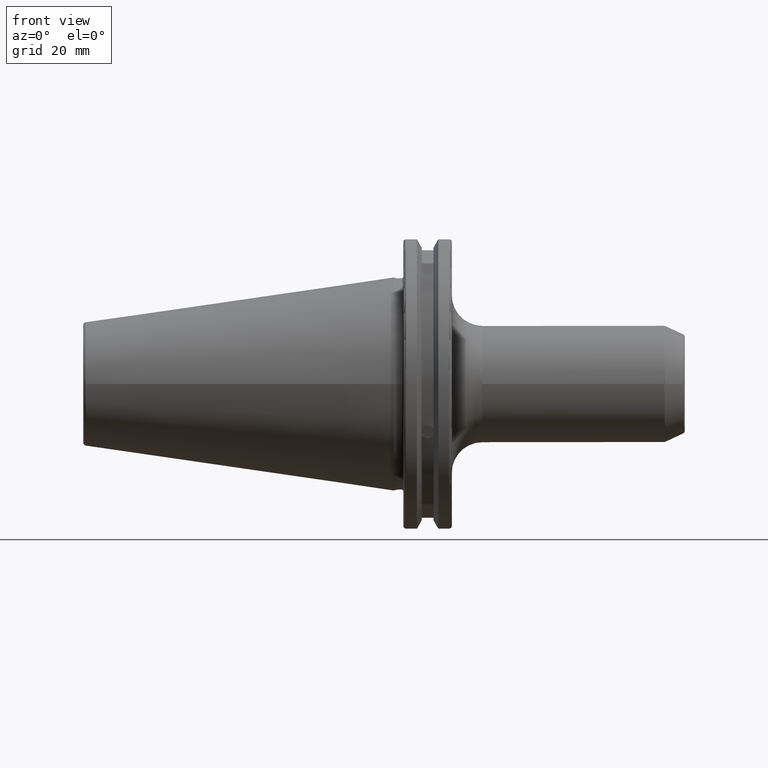
[diagram: clean part render]
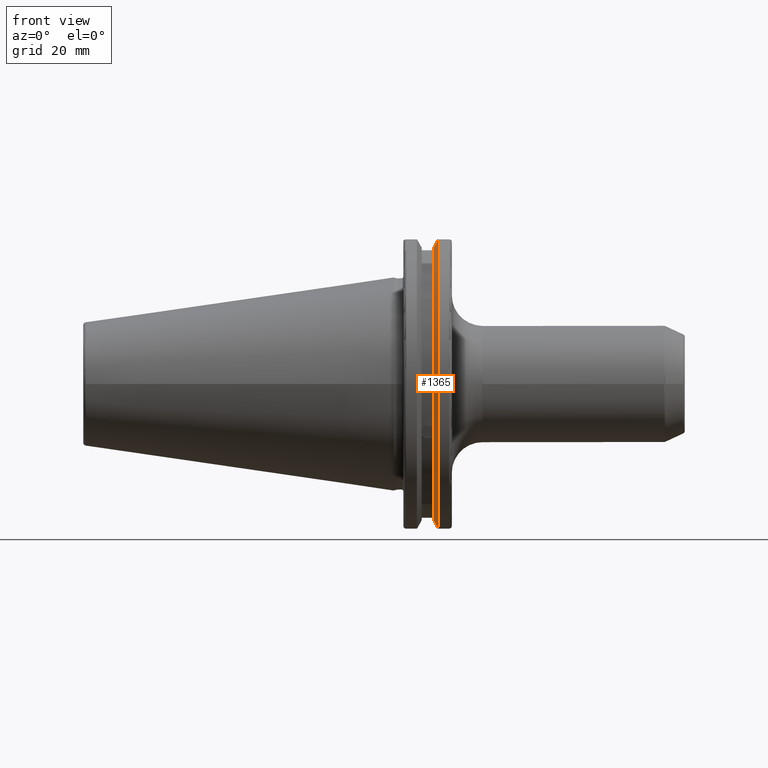
[diagram: same view with one face highlighted and labeled with its STEP entity id]
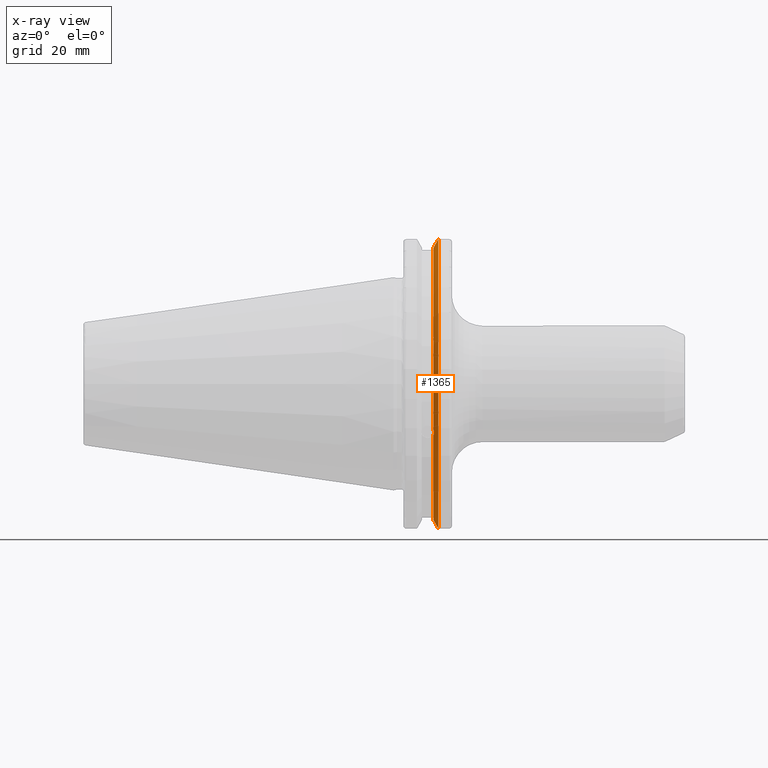
[diagram: x-ray of the same camera — body ghosted, the highlighted face saturated]
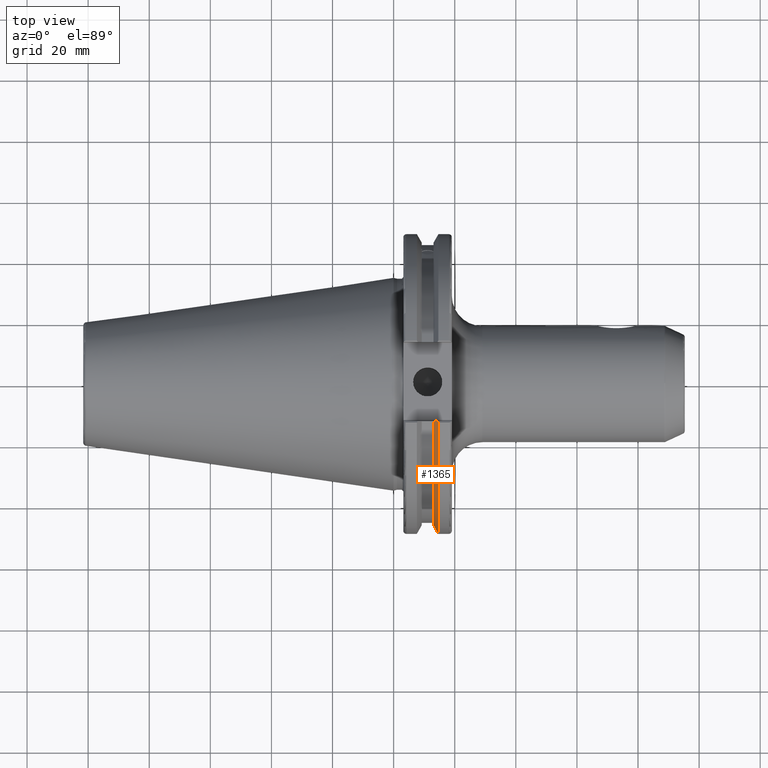
[diagram: same view with one face highlighted and labeled with its STEP entity id]
A machine part, front view. The second image highlights one B-rep face of the part: STEP entity #1365.
The next image is the same camera in x-ray: the body ghosted, the highlighted face saturated — about 0% of this face is hidden behind the body in this view.
A second angle (top view) of the same face is appended — the face is thin or edge-on in the first view.
In plain terms, the highlighted conical surface has half-angle 60 deg.
Its self-contained STEP definition (entity closure, byte-faithful):
#15=(
BOUNDED_CURVE()
B_SPLINE_CURVE(2,(#2269,#2270,#2271),.UNSPECIFIED.,.F.,.F.)
B_SPLINE_CURVE_WITH_KNOTS((3,3),(0.,0.275823910673374),.UNSPECIFIED.)
CURVE()
GEOMETRIC_REPRESENTATION_ITEM()
RATIONAL_B_SPLINE_CURVE((1.,1.00038235574978,1.00012873636953))
REPRESENTATION_ITEM('')
);
#16=(
BOUNDED_CURVE()
B_SPLINE_CURVE(2,(#2273,#2274,#2275),.UNSPECIFIED.,.F.,.F.)
B_SPLINE_CURVE_WITH_KNOTS((3,3),(0.,0.0648240472896156),.UNSPECIFIED.)
CURVE()
GEOMETRIC_REPRESENTATION_ITEM()
RATIONAL_B_SPLINE_CURVE((1.,1.00011477674884,1.00019140646027))
REPRESENTATION_ITEM('')
);
#17=(
BOUNDED_CURVE()
B_SPLINE_CURVE(2,(#2279,#2280,#2281),.UNSPECIFIED.,.F.,.F.)
B_SPLINE_CURVE_WITH_KNOTS((3,3),(0.325260944932494,0.3900849922222),
 .UNSPECIFIED.)
CURVE()
GEOMETRIC_REPRESENTATION_ITEM()
RATIONAL_B_SPLINE_CURVE((1.00019140645961,1.00011477674844,1.))
REPRESENTATION_ITEM('')
);
#18=(
BOUNDED_CURVE()
B_SPLINE_CURVE(2,(#2283,#2284,#2285),.UNSPECIFIED.,.F.,.F.)
B_SPLINE_CURVE_WITH_KNOTS((3,3),(0.0558332664531015,0.331657177124503),
 .UNSPECIFIED.)
CURVE()
GEOMETRIC_REPRESENTATION_ITEM()
RATIONAL_B_SPLINE_CURVE((1.00012873636668,1.00038235574129,1.))
REPRESENTATION_ITEM('')
);
#133=FACE_OUTER_BOUND('',#219,.T.);
#219=EDGE_LOOP('',(#1019,#1020,#1021,#1022,#1023,#1024,#1025,#1026,#1027));
#314=CIRCLE('',#1499,46.4219772964944);
#315=CIRCLE('',#1500,49.2125);
#316=CIRCLE('',#1501,46.4219772964944);
#539=B_SPLINE_CURVE_WITH_KNOTS('',3,(#2194,#2195,#2196,#2197,#2198,#2199,
#2200,#2201),.UNSPECIFIED.,.F.,.F.,(4,2,2,4),(0.42671286835872,0.441644498666905,
0.480313313223129,0.518982127779353),.UNSPECIFIED.);
#543=B_SPLINE_CURVE_WITH_KNOTS('',3,(#2256,#2257,#2258,#2259,#2260,#2261,
#2262,#2263),.UNSPECIFIED.,.F.,.F.,(4,2,2,4),(0.518982127779353,0.557650942335576,
0.5963197568918,0.611251387199985),.UNSPECIFIED.);
#605=VERTEX_POINT('',#2191);
#606=VERTEX_POINT('',#2193);
#613=VERTEX_POINT('',#2254);
#614=VERTEX_POINT('',#2266);
#615=VERTEX_POINT('',#2268);
#616=VERTEX_POINT('',#2272);
#617=VERTEX_POINT('',#2276);
#618=VERTEX_POINT('',#2278);
#619=VERTEX_POINT('',#2282);
#759=EDGE_CURVE('',#606,#605,#539,.T.);
#767=EDGE_CURVE('',#605,#613,#543,.T.);
#768=EDGE_CURVE('',#613,#614,#314,.T.);
#769=EDGE_CURVE('',#614,#615,#15,.T.);
#770=EDGE_CURVE('',#616,#615,#16,.T.);
#771=EDGE_CURVE('',#617,#616,#315,.T.);
#772=EDGE_CURVE('',#618,#617,#17,.T.);
#773=EDGE_CURVE('',#618,#619,#18,.T.);
#774=EDGE_CURVE('',#619,#606,#316,.T.);
#1019=ORIENTED_EDGE('',*,*,#759,.T.);
#1020=ORIENTED_EDGE('',*,*,#767,.T.);
#1021=ORIENTED_EDGE('',*,*,#768,.T.);
#1022=ORIENTED_EDGE('',*,*,#769,.T.);
#1023=ORIENTED_EDGE('',*,*,#770,.F.);
#1024=ORIENTED_EDGE('',*,*,#771,.F.);
#1025=ORIENTED_EDGE('',*,*,#772,.F.);
#1026=ORIENTED_EDGE('',*,*,#773,.T.);
#1027=ORIENTED_EDGE('',*,*,#774,.T.);
#1335=CONICAL_SURFACE('',#1498,47.8172386482472,1.0471975511966);
#1365=ADVANCED_FACE('',(#133),#1335,.T.);
#1498=AXIS2_PLACEMENT_3D('',#2265,#1733,#1734);
#1499=AXIS2_PLACEMENT_3D('',#2267,#1735,#1736);
#1500=AXIS2_PLACEMENT_3D('',#2277,#1737,#1738);
#1501=AXIS2_PLACEMENT_3D('',#2286,#1739,#1740);
#1733=DIRECTION('center_axis',(1.,0.,0.));
#1734=DIRECTION('ref_axis',(0.,-1.,-1.22464679914735E-16));
#1735=DIRECTION('center_axis',(1.,0.,0.));
#1736=DIRECTION('ref_axis',(0.,0.,-1.));
#1737=DIRECTION('center_axis',(1.,0.,0.));
#1738=DIRECTION('ref_axis',(0.,0.,-1.));
#1739=DIRECTION('center_axis',(1.,0.,0.));
#1740=DIRECTION('ref_axis',(0.,0.,-1.));
#2191=CARTESIAN_POINT('',(13.2341,-43.923494649906,-15.9868446375166));
#2193=CARTESIAN_POINT('',(13.0491,-43.9096390749305,-15.0646464421033));
#2194=CARTESIAN_POINT('Ctrl Pts',(13.0491,-43.9096390749305,-15.0646464421033));
#2195=CARTESIAN_POINT('Ctrl Pts',(13.0660815609661,-43.9250360001461,-15.1104047527575));
#2196=CARTESIAN_POINT('Ctrl Pts',(13.0821132459668,-43.9385582852181,-15.1564111356409));
#2197=CARTESIAN_POINT('Ctrl Pts',(13.1358132615496,-43.9797830409459,-15.3217566390708));
#2198=CARTESIAN_POINT('Ctrl Pts',(13.1719838933644,-43.9989016655819,-15.4570249042868));
#2199=CARTESIAN_POINT('Ctrl Pts',(13.2212913174802,-43.9931221605126,-15.7289849146254));
#2200=CARTESIAN_POINT('Ctrl Pts',(13.2341,-43.9675796948952,-15.8657219718732));
#2201=CARTESIAN_POINT('Ctrl Pts',(13.2341,-43.923494649906,-15.9868446375166));
#2254=CARTESIAN_POINT('',(13.0491,-43.3201030900029,-16.6843832486479));
#2256=CARTESIAN_POINT('Ctrl Pts',(13.2341,-43.923494649906,-15.9868446375166));
#2257=CARTESIAN_POINT('Ctrl Pts',(13.2341,-43.8794096049169,-16.10796730316));
#2258=CARTESIAN_POINT('Ctrl Pts',(13.2212913174802,-43.8110833825827,-16.2291323464527));
#2259=CARTESIAN_POINT('Ctrl Pts',(13.1719838933644,-43.6406982153492,-16.441180795372));
#2260=CARTESIAN_POINT('Ctrl Pts',(13.1358132615496,-43.5391037343221,-16.5325130832406));
#2261=CARTESIAN_POINT('Ctrl Pts',(13.0821132459668,-43.4012416983557,-16.6326763251437));
#2262=CARTESIAN_POINT('Ctrl Pts',(13.0660815609661,-43.3613106941341,-16.6592273018006));
#2263=CARTESIAN_POINT('Ctrl Pts',(13.0491,-43.3201030900029,-16.6843832486479));
#2265=CARTESIAN_POINT('Origin',(13.8546545170244,0.,0.));
#2266=CARTESIAN_POINT('',(13.0491,-12.95,-44.5791147973604));
#2267=CARTESIAN_POINT('Origin',(13.0491,0.,0.));
#2268=CARTESIAN_POINT('',(14.3818103943757,-12.95,-46.9780755322917));
#2269=CARTESIAN_POINT('Ctrl Pts',(13.0491,-12.95,-44.5791147973604));
#2270=CARTESIAN_POINT('Ctrl Pts',(13.697995509466,-12.95,-45.749496680259));
#2271=CARTESIAN_POINT('Ctrl Pts',(14.3818103943757,-12.95,-46.9780755322917));
#2272=CARTESIAN_POINT('',(14.6602090340487,-13.4317035994433,-47.3440544806494));
#2273=CARTESIAN_POINT('Ctrl Pts',(14.6602090340487,-13.4317035994433,-47.3440544806494));
#2274=CARTESIAN_POINT('Ctrl Pts',(14.5199310333617,-13.1896660169964,-47.1601640966263));
#2275=CARTESIAN_POINT('Ctrl Pts',(14.3818103943757,-12.95,-46.9780755322917));
#2276=CARTESIAN_POINT('',(14.6602090340487,-13.4317035994433,47.3440544806494));
#2277=CARTESIAN_POINT('Origin',(14.6602090340487,0.,0.));
#2278=CARTESIAN_POINT('',(14.3818103943757,-12.95,46.9780755322918));
#2279=CARTESIAN_POINT('Ctrl Pts',(14.3818103943757,-12.95,46.9780755322918));
#2280=CARTESIAN_POINT('Ctrl Pts',(14.5199310333617,-13.1896660169966,47.1601640966264));
#2281=CARTESIAN_POINT('Ctrl Pts',(14.6602090340487,-13.4317035994433,47.3440544806494));
#2282=CARTESIAN_POINT('',(13.0491,-12.95,44.5791147973604));
#2283=CARTESIAN_POINT('Ctrl Pts',(14.3818103943757,-12.95,46.9780755322918));
#2284=CARTESIAN_POINT('Ctrl Pts',(13.6979955094846,-12.95,45.7494966802924));
#2285=CARTESIAN_POINT('Ctrl Pts',(13.0491,-12.95,44.5791147973604));
#2286=CARTESIAN_POINT('Origin',(13.0491,0.,0.));